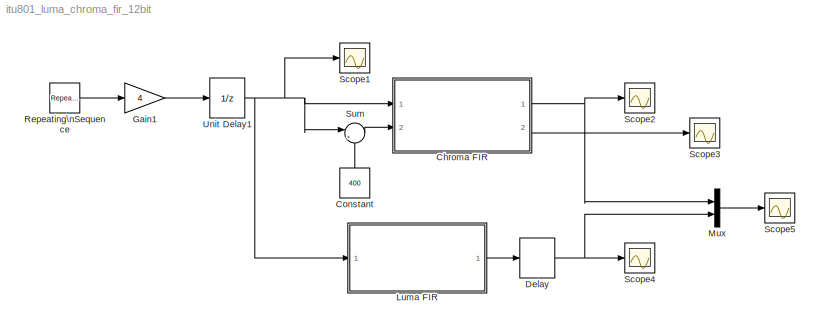
MODEL itu801_luma_chroma_fir_12bit
KIND model
CONFIG AbsTol = auto
CONFIG FixedStep = auto
CONFIG MaxStep = auto
CONFIG MinStep = auto
CONFIG RelTol = 1e-3
CONFIG Solver = ode45
CONFIG SolverMode = Auto
CONFIG StartTime = 0.0
CONFIG StopTime = 60
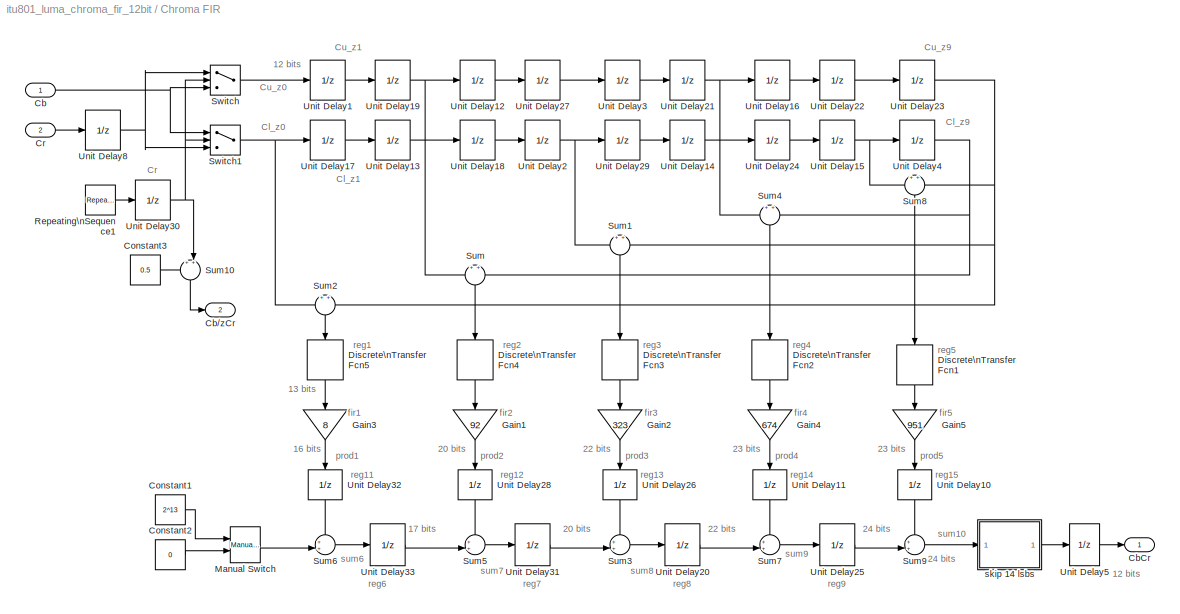
BLOCK [SubSystem] Chroma FIR
  Ports = [2, 2]
  TreatAsAtomicUnit = off
BLOCK [Inport] Chroma FIR/Cb
BLOCK [Outport] Chroma FIR/Cb//zCr
  Port = 2
BLOCK [Outport] Chroma FIR/CbCr
BLOCK [Constant] Chroma FIR/Constant1
  Value = 2^13
BLOCK [Constant] Chroma FIR/Constant2
  Value = 0
BLOCK [Constant] Chroma FIR/Constant3
  Value = 0.5
BLOCK [Inport] Chroma FIR/Cr
  Port = 2
BLOCK [DiscreteTransferFcn] Chroma FIR/Discrete\nTransfer Fcn1
  Denominator = [1 0]
BLOCK [DiscreteTransferFcn] Chroma FIR/Discrete\nTransfer Fcn2
  Denominator = [1 0]
BLOCK [DiscreteTransferFcn] Chroma FIR/Discrete\nTransfer Fcn3
  Denominator = [1 0]
BLOCK [DiscreteTransferFcn] Chroma FIR/Discrete\nTransfer Fcn4
  Denominator = [1 0]
BLOCK [DiscreteTransferFcn] Chroma FIR/Discrete\nTransfer Fcn5
  Denominator = [1 0]
BLOCK [Gain] Chroma FIR/Gain1
  Gain = 92
BLOCK [Gain] Chroma FIR/Gain2
  Gain = 323
BLOCK [Gain] Chroma FIR/Gain3
  Gain = 8
BLOCK [Gain] Chroma FIR/Gain4
  Gain = 674
BLOCK [Gain] Chroma FIR/Gain5
  Gain = 951
BLOCK [Reference] Chroma FIR/Manual Switch  REF=simulink/Signal\nRouting/Manual Switch
  Ports = [2, 1]
  SourceBlock = simulink/Signal\nRouting/Manual Switch
  SourceType = Manual Switch
  action = 0
  sw = 1
BLOCK [Reference] Chroma FIR/Repeating\nSequence1  REF=simulink/Sources/Repeating\nSequence
  Ports = [0, 1]
  SourceBlock = simulink/Sources/Repeating\nSequence
  SourceType = Repeating table
  rep_seq_t = [0 1 2]
  rep_seq_y = [0.5 -0.5 0.5]
BLOCK [Sum] Chroma FIR/Sum
  IconShape = round
  InputSameDT = off
  OutDataTypeMode = Inherit via internal rule
  Ports = [2, 1]
BLOCK [Sum] Chroma FIR/Sum1
  IconShape = round
  InputSameDT = off
  OutDataTypeMode = Inherit via internal rule
  Ports = [2, 1]
BLOCK [Sum] Chroma FIR/Sum10
  IconShape = round
  InputSameDT = off
  Inputs = ++|
  OutDataTypeMode = Inherit via internal rule
  Ports = [2, 1]
BLOCK [Sum] Chroma FIR/Sum2
  IconShape = round
  InputSameDT = off
  OutDataTypeMode = Inherit via internal rule
  Ports = [2, 1]
BLOCK [Sum] Chroma FIR/Sum3
  IconShape = round
  InputSameDT = off
  Inputs = ++|
  OutDataTypeMode = Inherit via internal rule
  Ports = [2, 1]
BLOCK [Sum] Chroma FIR/Sum4
  IconShape = round
  InputSameDT = off
  OutDataTypeMode = Inherit via internal rule
  Ports = [2, 1]
BLOCK [Sum] Chroma FIR/Sum5
  IconShape = round
  InputSameDT = off
  Inputs = ++|
  OutDataTypeMode = Inherit via internal rule
  Ports = [2, 1]
BLOCK [Sum] Chroma FIR/Sum6
  IconShape = round
  InputSameDT = off
  Inputs = ++|
  OutDataTypeMode = Inherit via internal rule
  Ports = [2, 1]
BLOCK [Sum] Chroma FIR/Sum7
  IconShape = round
  InputSameDT = off
  Inputs = ++|
  OutDataTypeMode = Inherit via internal rule
  Ports = [2, 1]
BLOCK [Sum] Chroma FIR/Sum8
  IconShape = round
  InputSameDT = off
  OutDataTypeMode = Inherit via internal rule
  Ports = [2, 1]
BLOCK [Sum] Chroma FIR/Sum9
  IconShape = round
  InputSameDT = off
  Inputs = ++|
  OutDataTypeMode = Inherit via internal rule
  Ports = [2, 1]
BLOCK [Switch] Chroma FIR/Switch
  InputSameDT = off
BLOCK [Switch] Chroma FIR/Switch1
  InputSameDT = off
BLOCK [UnitDelay] Chroma FIR/Unit Delay1
BLOCK [UnitDelay] Chroma FIR/Unit Delay10
BLOCK [UnitDelay] Chroma FIR/Unit Delay11
BLOCK [UnitDelay] Chroma FIR/Unit Delay12
BLOCK [UnitDelay] Chroma FIR/Unit Delay13
BLOCK [UnitDelay] Chroma FIR/Unit Delay14
BLOCK [UnitDelay] Chroma FIR/Unit Delay15
BLOCK [UnitDelay] Chroma FIR/Unit Delay16
BLOCK [UnitDelay] Chroma FIR/Unit Delay17
BLOCK [UnitDelay] Chroma FIR/Unit Delay18
BLOCK [UnitDelay] Chroma FIR/Unit Delay19
BLOCK [UnitDelay] Chroma FIR/Unit Delay2
BLOCK [UnitDelay] Chroma FIR/Unit Delay20
BLOCK [UnitDelay] Chroma FIR/Unit Delay21
BLOCK [UnitDelay] Chroma FIR/Unit Delay22
BLOCK [UnitDelay] Chroma FIR/Unit Delay23
BLOCK [UnitDelay] Chroma FIR/Unit Delay24
BLOCK [UnitDelay] Chroma FIR/Unit Delay25
BLOCK [UnitDelay] Chroma FIR/Unit Delay26
BLOCK [UnitDelay] Chroma FIR/Unit Delay27
BLOCK [UnitDelay] Chroma FIR/Unit Delay28
BLOCK [UnitDelay] Chroma FIR/Unit Delay29
BLOCK [UnitDelay] Chroma FIR/Unit Delay3
BLOCK [UnitDelay] Chroma FIR/Unit Delay30
  X0 = -0.5
BLOCK [UnitDelay] Chroma FIR/Unit Delay31
BLOCK [UnitDelay] Chroma FIR/Unit Delay32
BLOCK [UnitDelay] Chroma FIR/Unit Delay33
BLOCK [UnitDelay] Chroma FIR/Unit Delay4
BLOCK [UnitDelay] Chroma FIR/Unit Delay5
BLOCK [UnitDelay] Chroma FIR/Unit Delay8
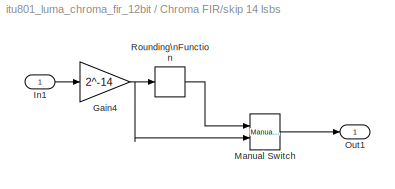
BLOCK [SubSystem] Chroma FIR/skip 14 lsbs
  Ports = [1, 1]
  TreatAsAtomicUnit = off
BLOCK [Gain] Chroma FIR/skip 14 lsbs/Gain4
  Gain = 2^-14
BLOCK [Inport] Chroma FIR/skip 14 lsbs/In1
BLOCK [Reference] Chroma FIR/skip 14 lsbs/Manual Switch  REF=simulink/Signal\nRouting/Manual Switch
  Ports = [2, 1]
  SourceBlock = simulink/Signal\nRouting/Manual Switch
  SourceType = Manual Switch
  action = 0
  sw = 1
BLOCK [Outport] Chroma FIR/skip 14 lsbs/Out1
BLOCK [Rounding] Chroma FIR/skip 14 lsbs/Rounding\nFunction
BLOCK [Constant] Constant
  Value = 400
BLOCK [DiscreteTransferFcn] Delay
  Denominator = [1 0 0 0 0]
BLOCK [Gain] Gain1
  Gain = 4
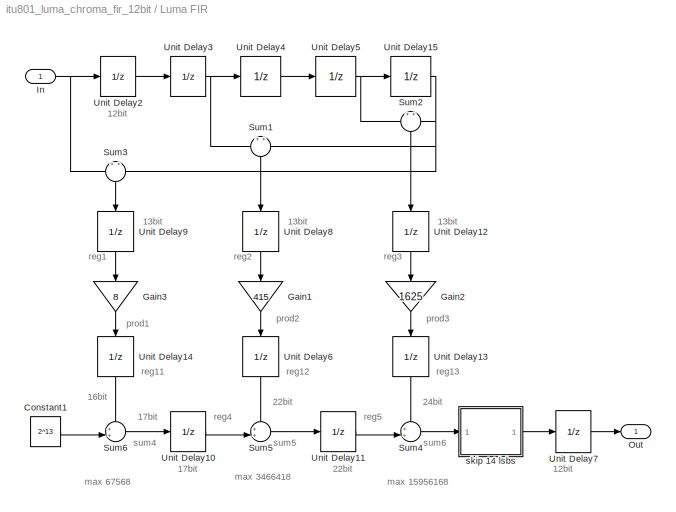
BLOCK [SubSystem] Luma FIR
  Ports = [1, 1]
  TreatAsAtomicUnit = off
BLOCK [Constant] Luma FIR/Constant1
  Value = 2^13
BLOCK [Gain] Luma FIR/Gain1
  Gain = 415
BLOCK [Gain] Luma FIR/Gain2
  Gain = 1625
BLOCK [Gain] Luma FIR/Gain3
  Gain = 8
BLOCK [Inport] Luma FIR/In
BLOCK [Outport] Luma FIR/Out
BLOCK [Sum] Luma FIR/Sum1
  IconShape = round
  InputSameDT = off
  OutDataTypeMode = Inherit via internal rule
  Ports = [2, 1]
BLOCK [Sum] Luma FIR/Sum2
  IconShape = round
  InputSameDT = off
  OutDataTypeMode = Inherit via internal rule
  Ports = [2, 1]
BLOCK [Sum] Luma FIR/Sum3
  IconShape = round
  InputSameDT = off
  OutDataTypeMode = Inherit via internal rule
  Ports = [2, 1]
BLOCK [Sum] Luma FIR/Sum4
  IconShape = round
  InputSameDT = off
  Inputs = ++|
  OutDataTypeMode = Inherit via internal rule
  Ports = [2, 1]
BLOCK [Sum] Luma FIR/Sum5
  IconShape = round
  InputSameDT = off
  Inputs = ++|
  OutDataTypeMode = Inherit via internal rule
  Ports = [2, 1]
BLOCK [Sum] Luma FIR/Sum6
  IconShape = round
  InputSameDT = off
  Inputs = ++|
  OutDataTypeMode = Inherit via internal rule
  Ports = [2, 1]
BLOCK [UnitDelay] Luma FIR/Unit Delay10
BLOCK [UnitDelay] Luma FIR/Unit Delay11
BLOCK [UnitDelay] Luma FIR/Unit Delay12
BLOCK [UnitDelay] Luma FIR/Unit Delay13
BLOCK [UnitDelay] Luma FIR/Unit Delay14
BLOCK [UnitDelay] Luma FIR/Unit Delay15
BLOCK [UnitDelay] Luma FIR/Unit Delay2
BLOCK [UnitDelay] Luma FIR/Unit Delay3
BLOCK [UnitDelay] Luma FIR/Unit Delay4
BLOCK [UnitDelay] Luma FIR/Unit Delay5
BLOCK [UnitDelay] Luma FIR/Unit Delay6
BLOCK [UnitDelay] Luma FIR/Unit Delay7
BLOCK [UnitDelay] Luma FIR/Unit Delay8
BLOCK [UnitDelay] Luma FIR/Unit Delay9
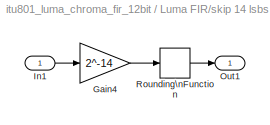
BLOCK [SubSystem] Luma FIR/skip 14 lsbs
  Ports = [1, 1]
  TreatAsAtomicUnit = off
BLOCK [Gain] Luma FIR/skip 14 lsbs/Gain4
  Gain = 2^-14
BLOCK [Inport] Luma FIR/skip 14 lsbs/In1
BLOCK [Outport] Luma FIR/skip 14 lsbs/Out1
BLOCK [Rounding] Luma FIR/skip 14 lsbs/Rounding\nFunction
BLOCK [Mux] Mux
  DisplayOption = bar
  Inputs = 2
  Ports = [2, 1]
BLOCK [Reference] Repeating\nSequence  REF=simulink/Sources/Repeating\nSequence
  Ports = [0, 1]
  SourceBlock = simulink/Sources/Repeating\nSequence
  SourceType = Repeating table
  rep_seq_t = [0 19 20 39 40]
  rep_seq_y = [16 16 235 235 16]
BLOCK [Scope] Scope1
  DataFormat = StructureWithTime
  NumInputPorts = 1
  Ports = [1]
  SaveName = ScopeData1
  TimeRange = 160
  YMax = 1.2
  YMin = -0.2
  ZoomMode = xonly
BLOCK [Scope] Scope2
  DataFormat = StructureWithTime
  NumInputPorts = 1
  Ports = [1]
  TimeRange = 160
  YMax = 4.5
  YMin = -1.5
  ZoomMode = xonly
BLOCK [Scope] Scope3
  DataFormat = StructureWithTime
  NumInputPorts = 1
  Ports = [1]
  SaveName = ScopeData3
  TimeRange = 60
  YMax = 1.2
  YMin = -0.2
  ZoomMode = xonly
BLOCK [Scope] Scope4
  DataFormat = StructureWithTime
  NumInputPorts = 1
  Ports = [1]
  SaveName = ScopeData2
  TimeRange = 160
  YMax = 1.2
  YMin = -0.2
  ZoomMode = xonly
BLOCK [Scope] Scope5
  DataFormat = StructureWithTime
  NumInputPorts = 1
  Ports = [1]
  SaveName = ScopeData4
  TimeRange = 60
  YMax = 350
  YMin = 0
  ZoomMode = yonly
BLOCK [Sum] Sum
  IconShape = round
  InputSameDT = off
  Inputs = |++
  OutDataTypeMode = Inherit via internal rule
  Ports = [2, 1]
BLOCK [UnitDelay] Unit Delay1
ANNOTATION Chroma FIR: 12 bits
ANNOTATION Chroma FIR: 13 bits
ANNOTATION Chroma FIR: 16 bits
ANNOTATION Chroma FIR: 17 bits
ANNOTATION Chroma FIR: 20 bits
ANNOTATION Chroma FIR: 22 bits
ANNOTATION Chroma FIR: 23 bits
ANNOTATION Chroma FIR: 24 bits
ANNOTATION Chroma FIR: Cl_z0
ANNOTATION Chroma FIR: Cl_z1
ANNOTATION Chroma FIR: Cl_z9
ANNOTATION Chroma FIR: Cr
ANNOTATION Chroma FIR: Cu_z0
ANNOTATION Chroma FIR: Cu_z1
ANNOTATION Chroma FIR: Cu_z9
ANNOTATION Chroma FIR: fir1
ANNOTATION Chroma FIR: fir2
ANNOTATION Chroma FIR: fir3
ANNOTATION Chroma FIR: fir4
ANNOTATION Chroma FIR: fir5
ANNOTATION Chroma FIR: prod1
ANNOTATION Chroma FIR: prod2
ANNOTATION Chroma FIR: prod3
ANNOTATION Chroma FIR: prod4
ANNOTATION Chroma FIR: prod5
ANNOTATION Chroma FIR: reg1
ANNOTATION Chroma FIR: reg11
ANNOTATION Chroma FIR: reg12
ANNOTATION Chroma FIR: reg13
ANNOTATION Chroma FIR: reg14
ANNOTATION Chroma FIR: reg15
ANNOTATION Chroma FIR: reg2
ANNOTATION Chroma FIR: reg3
ANNOTATION Chroma FIR: reg4
ANNOTATION Chroma FIR: reg5
ANNOTATION Chroma FIR: reg6
ANNOTATION Chroma FIR: reg7
ANNOTATION Chroma FIR: reg8
ANNOTATION Chroma FIR: reg9
ANNOTATION Chroma FIR: sum10
ANNOTATION Chroma FIR: sum6
ANNOTATION Chroma FIR: sum7
ANNOTATION Chroma FIR: sum8
ANNOTATION Chroma FIR: sum9
ANNOTATION Luma FIR: 12bit
ANNOTATION Luma FIR: 13bit
ANNOTATION Luma FIR: 16bit
ANNOTATION Luma FIR: 17bit
ANNOTATION Luma FIR: 22bit
ANNOTATION Luma FIR: 24bit
ANNOTATION Luma FIR: max 15956168
ANNOTATION Luma FIR: max 3466418
ANNOTATION Luma FIR: max 67568
ANNOTATION Luma FIR: prod1
ANNOTATION Luma FIR: prod2
ANNOTATION Luma FIR: prod3
ANNOTATION Luma FIR: reg1
ANNOTATION Luma FIR: reg11
ANNOTATION Luma FIR: reg12
ANNOTATION Luma FIR: reg13
ANNOTATION Luma FIR: reg2
ANNOTATION Luma FIR: reg3
ANNOTATION Luma FIR: reg4
ANNOTATION Luma FIR: reg5
ANNOTATION Luma FIR: sum4
ANNOTATION Luma FIR: sum5
ANNOTATION Luma FIR: sum6
NET Chroma FIR/Cb:1 -> Chroma FIR/Switch1:1, Chroma FIR/Switch:3
LINE Chroma FIR/Constant1:1 -> Chroma FIR/Manual Switch:1
LINE Chroma FIR/Constant2:1 -> Chroma FIR/Manual Switch:2
LINE Chroma FIR/Constant3:1 -> Chroma FIR/Sum10:1
LINE Chroma FIR/Cr:1 -> Chroma FIR/Unit Delay8:1
LINE Chroma FIR/Discrete\nTransfer Fcn1:1 -> Chroma FIR/Gain5:1
LINE Chroma FIR/Discrete\nTransfer Fcn2:1 -> Chroma FIR/Gain4:1
LINE Chroma FIR/Discrete\nTransfer Fcn3:1 -> Chroma FIR/Gain2:1
LINE Chroma FIR/Discrete\nTransfer Fcn4:1 -> Chroma FIR/Gain1:1
LINE Chroma FIR/Discrete\nTransfer Fcn5:1 -> Chroma FIR/Gain3:1
LINE Chroma FIR/Gain1:1 -> Chroma FIR/Unit Delay28:1
LINE Chroma FIR/Gain2:1 -> Chroma FIR/Unit Delay26:1
LINE Chroma FIR/Gain3:1 -> Chroma FIR/Unit Delay32:1
LINE Chroma FIR/Gain4:1 -> Chroma FIR/Unit Delay11:1
LINE Chroma FIR/Gain5:1 -> Chroma FIR/Unit Delay10:1
LINE Chroma FIR/Manual Switch:1 -> Chroma FIR/Sum6:2
LINE Chroma FIR/Repeating\nSequence1:1 -> Chroma FIR/Unit Delay30:1
LINE Chroma FIR/Sum10:1 -> Chroma FIR/Cb//zCr:1
LINE Chroma FIR/Sum1:1 -> Chroma FIR/Discrete\nTransfer Fcn3:1
LINE Chroma FIR/Sum2:1 -> Chroma FIR/Discrete\nTransfer Fcn5:1
LINE Chroma FIR/Sum3:1 -> Chroma FIR/Unit Delay20:1
LINE Chroma FIR/Sum4:1 -> Chroma FIR/Discrete\nTransfer Fcn2:1
LINE Chroma FIR/Sum5:1 -> Chroma FIR/Unit Delay31:1
LINE Chroma FIR/Sum6:1 -> Chroma FIR/Unit Delay33:1
LINE Chroma FIR/Sum7:1 -> Chroma FIR/Unit Delay25:1
LINE Chroma FIR/Sum8:1 -> Chroma FIR/Discrete\nTransfer Fcn1:1
LINE Chroma FIR/Sum9:1 -> Chroma FIR/skip 14 lsbs:1
LINE Chroma FIR/Sum:1 -> Chroma FIR/Discrete\nTransfer Fcn4:1
NET Chroma FIR/Switch1:1 -> Chroma FIR/Sum2:1, Chroma FIR/Unit Delay17:1
LINE Chroma FIR/Switch:1 -> Chroma FIR/Unit Delay1:1
LINE Chroma FIR/Unit Delay10:1 -> Chroma FIR/Sum9:1
LINE Chroma FIR/Unit Delay11:1 -> Chroma FIR/Sum7:1
LINE Chroma FIR/Unit Delay12:1 -> Chroma FIR/Unit Delay27:1
LINE Chroma FIR/Unit Delay13:1 -> Chroma FIR/Unit Delay18:1
LINE Chroma FIR/Unit Delay14:1 -> Chroma FIR/Unit Delay24:1
NET Chroma FIR/Unit Delay15:1 -> Chroma FIR/Sum8:1, Chroma FIR/Unit Delay4:1
LINE Chroma FIR/Unit Delay16:1 -> Chroma FIR/Unit Delay22:1
LINE Chroma FIR/Unit Delay17:1 -> Chroma FIR/Unit Delay13:1
LINE Chroma FIR/Unit Delay18:1 -> Chroma FIR/Unit Delay2:1
NET Chroma FIR/Unit Delay19:1 -> Chroma FIR/Sum:1, Chroma FIR/Unit Delay12:1
LINE Chroma FIR/Unit Delay1:1 -> Chroma FIR/Unit Delay19:1
LINE Chroma FIR/Unit Delay20:1 -> Chroma FIR/Sum7:2
NET Chroma FIR/Unit Delay21:1 -> Chroma FIR/Sum4:1, Chroma FIR/Unit Delay16:1
LINE Chroma FIR/Unit Delay22:1 -> Chroma FIR/Unit Delay23:1
NET Chroma FIR/Unit Delay23:1 -> Chroma FIR/Sum1:2, Chroma FIR/Sum2:2, Chroma FIR/Sum8:2
LINE Chroma FIR/Unit Delay24:1 -> Chroma FIR/Unit Delay15:1
LINE Chroma FIR/Unit Delay25:1 -> Chroma FIR/Sum9:2
LINE Chroma FIR/Unit Delay26:1 -> Chroma FIR/Sum3:1
LINE Chroma FIR/Unit Delay27:1 -> Chroma FIR/Unit Delay3:1
LINE Chroma FIR/Unit Delay28:1 -> Chroma FIR/Sum5:1
LINE Chroma FIR/Unit Delay29:1 -> Chroma FIR/Unit Delay14:1
NET Chroma FIR/Unit Delay2:1 -> Chroma FIR/Sum1:1, Chroma FIR/Unit Delay29:1
NET Chroma FIR/Unit Delay30:1 -> Chroma FIR/Sum10:2, Chroma FIR/Switch1:2, Chroma FIR/Switch:2
LINE Chroma FIR/Unit Delay31:1 -> Chroma FIR/Sum3:2
LINE Chroma FIR/Unit Delay32:1 -> Chroma FIR/Sum6:1
LINE Chroma FIR/Unit Delay33:1 -> Chroma FIR/Sum5:2
LINE Chroma FIR/Unit Delay3:1 -> Chroma FIR/Unit Delay21:1
NET Chroma FIR/Unit Delay4:1 -> Chroma FIR/Sum4:2, Chroma FIR/Sum:2
LINE Chroma FIR/Unit Delay5:1 -> Chroma FIR/CbCr:1
NET Chroma FIR/Unit Delay8:1 -> Chroma FIR/Switch1:3, Chroma FIR/Switch:1
NET Chroma FIR/skip 14 lsbs/Gain4:1 -> Chroma FIR/skip 14 lsbs/Manual Switch:2, Chroma FIR/skip 14 lsbs/Rounding\nFunction:1
LINE Chroma FIR/skip 14 lsbs/In1:1 -> Chroma FIR/skip 14 lsbs/Gain4:1
LINE Chroma FIR/skip 14 lsbs/Manual Switch:1 -> Chroma FIR/skip 14 lsbs/Out1:1
LINE Chroma FIR/skip 14 lsbs/Rounding\nFunction:1 -> Chroma FIR/skip 14 lsbs/Manual Switch:1
LINE Chroma FIR/skip 14 lsbs:1 -> Chroma FIR/Unit Delay5:1
NET Chroma FIR:1 -> Mux:1, Scope2:1
LINE Chroma FIR:2 -> Scope3:1
LINE Constant:1 -> Sum:2
NET Delay:1 -> Mux:2, Scope4:1
LINE Gain1:1 -> Unit Delay1:1
LINE Luma FIR/Constant1:1 -> Luma FIR/Sum6:2
LINE Luma FIR/Gain1:1 -> Luma FIR/Unit Delay6:1
LINE Luma FIR/Gain2:1 -> Luma FIR/Unit Delay13:1
LINE Luma FIR/Gain3:1 -> Luma FIR/Unit Delay14:1
NET Luma FIR/In:1 -> Luma FIR/Sum3:1, Luma FIR/Unit Delay2:1
LINE Luma FIR/Sum1:1 -> Luma FIR/Unit Delay8:1
LINE Luma FIR/Sum2:1 -> Luma FIR/Unit Delay12:1
LINE Luma FIR/Sum3:1 -> Luma FIR/Unit Delay9:1
LINE Luma FIR/Sum4:1 -> Luma FIR/skip 14 lsbs:1
LINE Luma FIR/Sum5:1 -> Luma FIR/Unit Delay11:1
LINE Luma FIR/Sum6:1 -> Luma FIR/Unit Delay10:1
LINE Luma FIR/Unit Delay10:1 -> Luma FIR/Sum5:2
LINE Luma FIR/Unit Delay11:1 -> Luma FIR/Sum4:2
LINE Luma FIR/Unit Delay12:1 -> Luma FIR/Gain2:1
LINE Luma FIR/Unit Delay13:1 -> Luma FIR/Sum4:1
LINE Luma FIR/Unit Delay14:1 -> Luma FIR/Sum6:1
NET Luma FIR/Unit Delay15:1 -> Luma FIR/Sum1:2, Luma FIR/Sum2:2, Luma FIR/Sum3:2
LINE Luma FIR/Unit Delay2:1 -> Luma FIR/Unit Delay3:1
NET Luma FIR/Unit Delay3:1 -> Luma FIR/Sum1:1, Luma FIR/Unit Delay4:1
LINE Luma FIR/Unit Delay4:1 -> Luma FIR/Unit Delay5:1
NET Luma FIR/Unit Delay5:1 -> Luma FIR/Sum2:1, Luma FIR/Unit Delay15:1
LINE Luma FIR/Unit Delay6:1 -> Luma FIR/Sum5:1
LINE Luma FIR/Unit Delay7:1 -> Luma FIR/Out:1
LINE Luma FIR/Unit Delay8:1 -> Luma FIR/Gain1:1
LINE Luma FIR/Unit Delay9:1 -> Luma FIR/Gain3:1
LINE Luma FIR/skip 14 lsbs/Gain4:1 -> Luma FIR/skip 14 lsbs/Rounding\nFunction:1
LINE Luma FIR/skip 14 lsbs/In1:1 -> Luma FIR/skip 14 lsbs/Gain4:1
LINE Luma FIR/skip 14 lsbs/Rounding\nFunction:1 -> Luma FIR/skip 14 lsbs/Out1:1
LINE Luma FIR/skip 14 lsbs:1 -> Luma FIR/Unit Delay7:1
LINE Luma FIR:1 -> Delay:1
LINE Mux:1 -> Scope5:1
LINE Repeating\nSequence:1 -> Gain1:1
LINE Sum:1 -> Chroma FIR:2
NET Unit Delay1:1 -> Chroma FIR:1, Luma FIR:1, Scope1:1, Sum:1
note: NET lines group one-source signal fan-out (src -> all destinations, sorted); 1:1 wires keep LINE
